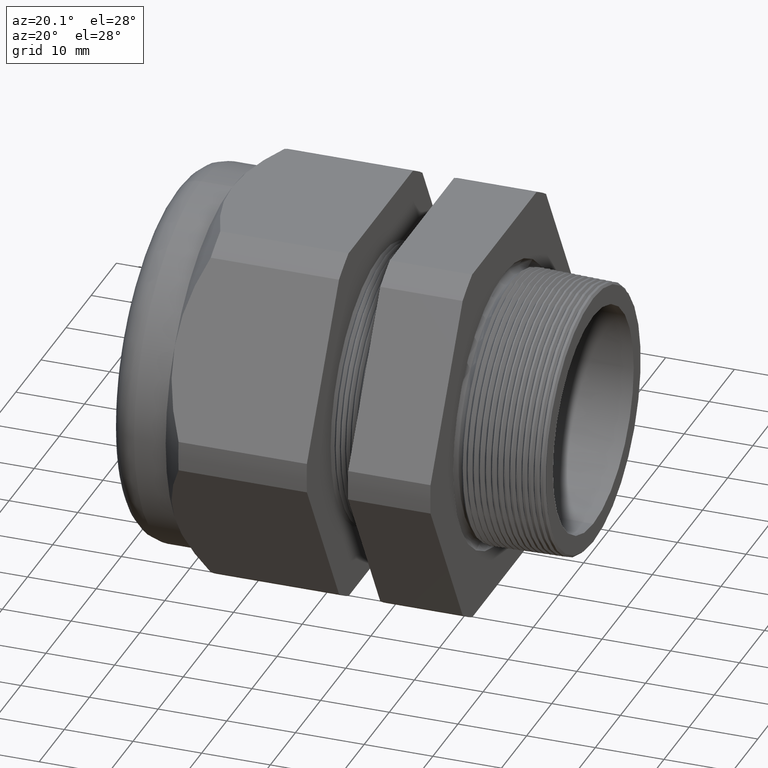
[diagram: clean part render]
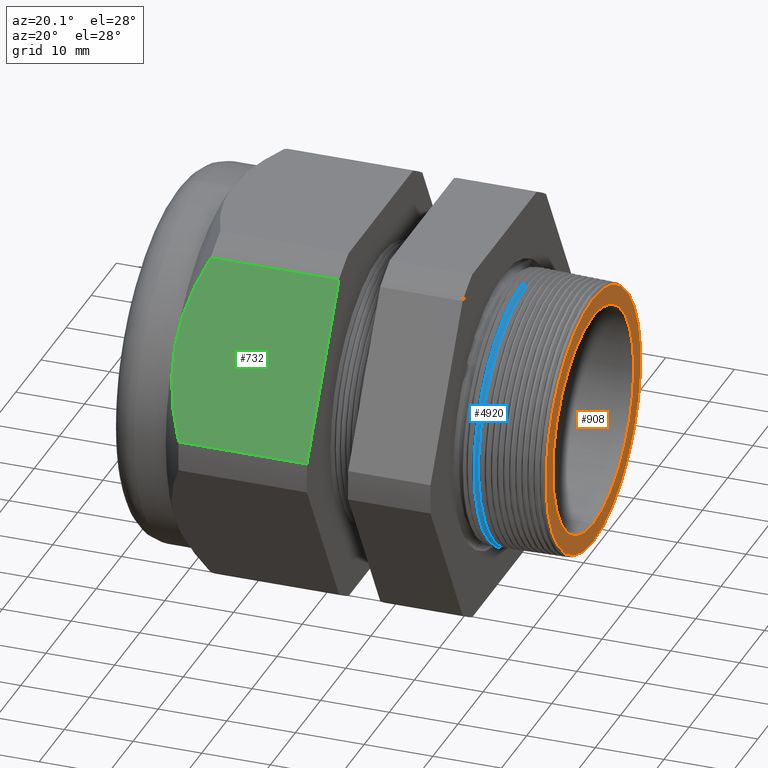
[diagram: same view with three faces highlighted in distinct colors, each labeled with its STEP entity id]
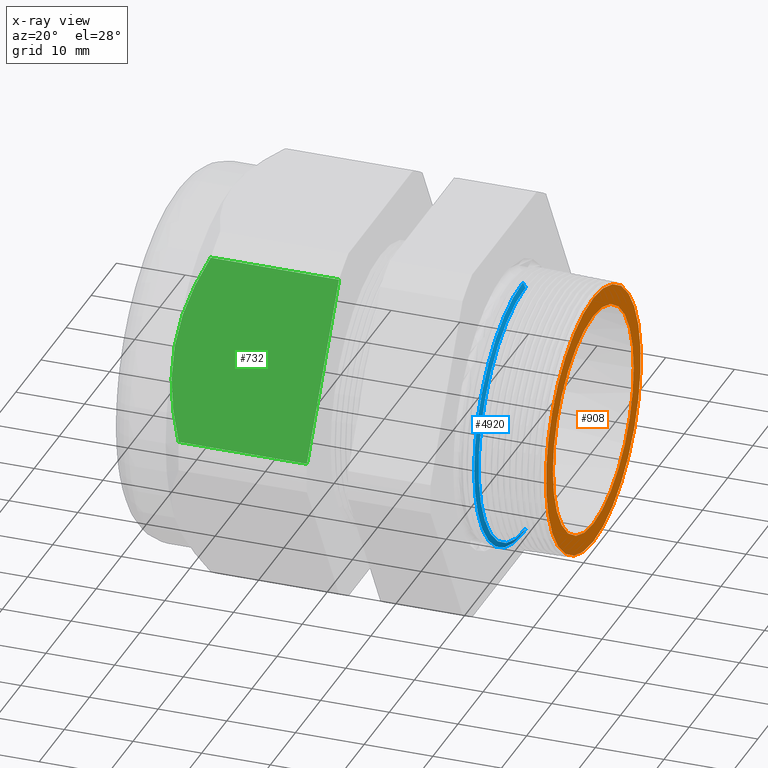
[diagram: x-ray of the same camera — body ghosted, the three highlighted faces saturated]
A machine part, auxiliary view with three faces highlighted in distinct colors.
The next image is the same camera in x-ray (body ghosted, the three faces saturated) — at least one of them is partly hidden behind the body in this view.
Their STEP definitions:

[orange] entity #908 — the highlighted planar face has unit normal (1, 0, 0).
#842 = EDGE_LOOP ( 'NONE', ( #843, #890 ) ) ;
#843 = ORIENTED_EDGE ( 'NONE', *, *, #907, .F. ) ;
#890 = ORIENTED_EDGE ( 'NONE', *, *, #5085, .F. ) ;
#907 = EDGE_CURVE ( 'NONE', #5086, #4892, #2609, .T. ) ;
#908 = ADVANCED_FACE ( 'NONE', ( #2605, #2604 ), #2603, .T. ) ;
#909 = EDGE_LOOP ( 'NONE', ( #910, #912 ) ) ;
#910 = ORIENTED_EDGE ( 'NONE', *, *, #911, .F. ) ;
#911 = EDGE_CURVE ( 'NONE', #5076, #5074, #2598, .T. ) ;
#912 = ORIENTED_EDGE ( 'NONE', *, *, #5081, .F. ) ;
#2594 = DIRECTION ( 'NONE',  ( 0.0000000000000000000, 0.0000000000000000000, -1.000000000000000000 ) ) ;
#2595 = DIRECTION ( 'NONE',  ( -1.000000000000000000, 0.0000000000000000000, 0.0000000000000000000 ) ) ;
#2596 = CARTESIAN_POINT ( 'NONE',  ( 0.2000000000000000400, 0.0000000000000000000, 0.0000000000000000000 ) ) ;
#2597 = AXIS2_PLACEMENT_3D ( 'NONE', #2596, #2595, #2594 ) ;
#2598 = CIRCLE ( 'NONE', #2597, 0.7416599535508322500 ) ;
#2599 = DIRECTION ( 'NONE',  ( 0.0000000000000000000, 0.0000000000000000000, -1.000000000000000000 ) ) ;
#2600 = DIRECTION ( 'NONE',  ( 1.000000000000000000, 0.0000000000000000000, 0.0000000000000000000 ) ) ;
#2601 = CARTESIAN_POINT ( 'NONE',  ( 0.2000000000000000400, 0.6330845254709034400, 0.0000000000000000000 ) ) ;
#2602 = AXIS2_PLACEMENT_3D ( 'NONE', #2601, #2600, #2599 ) ;
#2603 = PLANE ( 'NONE',  #2602 ) ;
#2604 = FACE_BOUND ( 'NONE', #842, .T. ) ;
#2605 = FACE_OUTER_BOUND ( 'NONE', #909, .T. ) ;
#2606 = DIRECTION ( 'NONE',  ( 0.0000000000000000000, 0.0000000000000000000, -1.000000000000000000 ) ) ;
#2607 = DIRECTION ( 'NONE',  ( 1.000000000000000000, 0.0000000000000000000, 0.0000000000000000000 ) ) ;
#2608 = AXIS2_PLACEMENT_3D ( 'NONE', #2614, #2607, #2606 ) ;
#2609 = CIRCLE ( 'NONE', #2608, 0.6330845254709034400 ) ;
#2614 = CARTESIAN_POINT ( 'NONE',  ( 0.2000000000000000400, 0.0000000000000000000, 0.0000000000000000000 ) ) ;
#3285 = CARTESIAN_POINT ( 'NONE',  ( 0.2000000000000000400, 7.753049377076629200E-017, 0.6330845254709034400 ) ) ;
#3542 = CIRCLE ( 'NONE', #3606, 0.7416599535508322500 ) ;
#3548 = CARTESIAN_POINT ( 'NONE',  ( 0.2000000000000000400, 0.0000000000000000000, -0.7416599535508322500 ) ) ;
#3550 = CARTESIAN_POINT ( 'NONE',  ( 0.2000000000000000400, 9.082714881718013100E-017, 0.7416599535508322500 ) ) ;
#3588 = CARTESIAN_POINT ( 'NONE',  ( 0.2000000000000000400, 0.0000000000000000000, -0.6330845254709034400 ) ) ;
#3589 = DIRECTION ( 'NONE',  ( 0.0000000000000000000, 0.0000000000000000000, -1.000000000000000000 ) ) ;
#3590 = DIRECTION ( 'NONE',  ( 1.000000000000000000, 0.0000000000000000000, 0.0000000000000000000 ) ) ;
#3591 = CARTESIAN_POINT ( 'NONE',  ( 0.2000000000000000400, 0.0000000000000000000, 0.0000000000000000000 ) ) ;
#3592 = AXIS2_PLACEMENT_3D ( 'NONE', #3591, #3590, #3589 ) ;
#3593 = CIRCLE ( 'NONE', #3592, 0.6330845254709034400 ) ;
#3603 = DIRECTION ( 'NONE',  ( 0.0000000000000000000, 0.0000000000000000000, -1.000000000000000000 ) ) ;
#3604 = DIRECTION ( 'NONE',  ( -1.000000000000000000, 0.0000000000000000000, 0.0000000000000000000 ) ) ;
#3605 = CARTESIAN_POINT ( 'NONE',  ( 0.2000000000000000400, 0.0000000000000000000, 0.0000000000000000000 ) ) ;
#3606 = AXIS2_PLACEMENT_3D ( 'NONE', #3605, #3604, #3603 ) ;
#4892 = VERTEX_POINT ( 'NONE', #3285 ) ;
#5074 = VERTEX_POINT ( 'NONE', #3550 ) ;
#5076 = VERTEX_POINT ( 'NONE', #3548 ) ;
#5081 = EDGE_CURVE ( 'NONE', #5074, #5076, #3542, .T. ) ;
#5085 = EDGE_CURVE ( 'NONE', #4892, #5086, #3593, .T. ) ;
#5086 = VERTEX_POINT ( 'NONE', #3588 ) ;

[blue] entity #4920 — the highlighted conical surface has half-angle 61.5 deg.
#307 = VERTEX_POINT ( 'NONE', #1474 ) ;
#312 = VERTEX_POINT ( 'NONE', #1463 ) ;
#340 = EDGE_CURVE ( 'NONE', #312, #348, #1531, .T. ) ;
#348 = VERTEX_POINT ( 'NONE', #1574 ) ;
#517 = EDGE_CURVE ( 'NONE', #5252, #348, #1793, .T. ) ;
#1463 = CARTESIAN_POINT ( 'NONE',  ( -0.1884707356790752100, 9.182685790054578000E-017, -0.7359962276773550600 ) ) ;
#1474 = CARTESIAN_POINT ( 'NONE',  ( -0.1884707356790752100, 0.0000000000000000000, 0.7359962276773550600 ) ) ;
#1528 = DIRECTION ( 'NONE',  ( -0.4771587602596179000, 1.076240564057388100E-016, -0.8788171126619600500 ) ) ;
#1529 = VECTOR ( 'NONE', #1528, 39.37007874015748900 ) ;
#1530 = CARTESIAN_POINT ( 'NONE',  ( -0.2049999999999999600, 9.386174911718792200E-017, -0.7664393454711850900 ) ) ;
#1531 = LINE ( 'NONE', #1530, #1529 ) ;
#1574 = CARTESIAN_POINT ( 'NONE',  ( -0.2034856000580644300, 9.352496886341754700E-017, -0.7636501677483175100 ) ) ;
#1785 = DIRECTION ( 'NONE',  ( 0.0000000000000000000, 0.0000000000000000000, 1.000000000000000000 ) ) ;
#1786 = DIRECTION ( 'NONE',  ( 1.000000000000000000, 0.0000000000000000000, 0.0000000000000000000 ) ) ;
#1787 = CARTESIAN_POINT ( 'NONE',  ( -0.2034856000580644300, 0.0000000000000000000, 0.0000000000000000000 ) ) ;
#1788 = AXIS2_PLACEMENT_3D ( 'NONE', #1787, #1786, #1785 ) ;
#1793 = CIRCLE ( 'NONE', #1788, 0.7636501677483175100 ) ;
#3303 = DIRECTION ( 'NONE',  ( 0.0000000000000000000, 0.0000000000000000000, 1.000000000000000000 ) ) ;
#3304 = DIRECTION ( 'NONE',  ( -1.000000000000000000, 0.0000000000000000000, 0.0000000000000000000 ) ) ;
#3305 = AXIS2_PLACEMENT_3D ( 'NONE', #3307, #3304, #3303 ) ;
#3306 = CONICAL_SURFACE ( 'NONE', #3305, 0.7664393454711850900, 1.073377489976501800 ) ;
#3307 = CARTESIAN_POINT ( 'NONE',  ( -0.2049999999999999600, 0.0000000000000000000, 0.0000000000000000000 ) ) ;
#3308 = FACE_OUTER_BOUND ( 'NONE', #4915, .T. ) ;
#3310 = DIRECTION ( 'NONE',  ( 0.0000000000000000000, 0.0000000000000000000, -1.000000000000000000 ) ) ;
#3311 = DIRECTION ( 'NONE',  ( 1.000000000000000000, 0.0000000000000000000, 0.0000000000000000000 ) ) ;
#3312 = CARTESIAN_POINT ( 'NONE',  ( -0.1884707356790752100, 0.0000000000000000000, 0.0000000000000000000 ) ) ;
#3313 = AXIS2_PLACEMENT_3D ( 'NONE', #3312, #3311, #3310 ) ;
#3318 = CIRCLE ( 'NONE', #3313, 0.7359962276773550600 ) ;
#3875 = CARTESIAN_POINT ( 'NONE',  ( -0.2034856000580644300, 0.0000000000000000000, 0.7636501677483175100 ) ) ;
#3876 = DIRECTION ( 'NONE',  ( -0.4771587602596179000, 0.0000000000000000000, 0.8788171126619600500 ) ) ;
#3877 = VECTOR ( 'NONE', #3876, 39.37007874015748900 ) ;
#3878 = CARTESIAN_POINT ( 'NONE',  ( -0.2049999999999999600, 0.0000000000000000000, 0.7664393454711850900 ) ) ;
#3879 = LINE ( 'NONE', #3878, #3877 ) ;
#4912 = ORIENTED_EDGE ( 'NONE', *, *, #4917, .F. ) ;
#4913 = ORIENTED_EDGE ( 'NONE', *, *, #5248, .T. ) ;
#4914 = ORIENTED_EDGE ( 'NONE', *, *, #340, .F. ) ;
#4915 = EDGE_LOOP ( 'NONE', ( #4914, #4912, #4913, #4916 ) ) ;
#4916 = ORIENTED_EDGE ( 'NONE', *, *, #517, .T. ) ;
#4917 = EDGE_CURVE ( 'NONE', #307, #312, #3318, .T. ) ;
#4920 = ADVANCED_FACE ( 'NONE', ( #3308 ), #3306, .T. ) ;
#5248 = EDGE_CURVE ( 'NONE', #307, #5252, #3879, .T. ) ;
#5252 = VERTEX_POINT ( 'NONE', #3875 ) ;

[green] entity #732 — the highlighted planar face has unit normal (0, -0.866, 0.5).
#717 = ORIENTED_EDGE ( 'NONE', *, *, #718, .F. ) ;
#718 = EDGE_CURVE ( 'NONE', #736, #753, #2239, .T. ) ;
#732 = ADVANCED_FACE ( 'NONE', ( #2264 ), #2263, .T. ) ;
#733 = EDGE_LOOP ( 'NONE', ( #734, #738, #741, #743, #717 ) ) ;
#734 = ORIENTED_EDGE ( 'NONE', *, *, #735, .T. ) ;
#735 = EDGE_CURVE ( 'NONE', #736, #737, #2258, .T. ) ;
#736 = VERTEX_POINT ( 'NONE', #2254 ) ;
#737 = VERTEX_POINT ( 'NONE', #2253 ) ;
#738 = ORIENTED_EDGE ( 'NONE', *, *, #739, .T. ) ;
#739 = EDGE_CURVE ( 'NONE', #737, #740, #2252, .T. ) ;
#740 = VERTEX_POINT ( 'NONE', #2251 ) ;
#741 = ORIENTED_EDGE ( 'NONE', *, *, #742, .T. ) ;
#742 = EDGE_CURVE ( 'NONE', #740, #754, #2299, .T. ) ;
#743 = ORIENTED_EDGE ( 'NONE', *, *, #752, .F. ) ;
#752 = EDGE_CURVE ( 'NONE', #753, #754, #2275, .T. ) ;
#753 = VERTEX_POINT ( 'NONE', #2326 ) ;
#754 = VERTEX_POINT ( 'NONE', #2325 ) ;
#2236 = DIRECTION ( 'NONE',  ( 0.0000000000000000000, -0.4999999999999996100, -0.8660254037844388200 ) ) ;
#2237 = VECTOR ( 'NONE', #2236, 39.37007874015748900 ) ;
#2238 = CARTESIAN_POINT ( 'NONE',  ( -1.018802799999999800, -0.7087465469547383800, 0.8624149709853914400 ) ) ;
#2239 = LINE ( 'NONE', #2238, #2237 ) ;
#2249 = CARTESIAN_POINT ( 'NONE',  ( -1.789102837835438100, -0.6933177427239284300, 0.8891384438131889600 ) ) ;
#2250 = CARTESIAN_POINT ( 'NONE',  ( -1.754342000000000300, -0.6532729870224187600, 0.9584979952648864400 ) ) ;
#2251 = CARTESIAN_POINT ( 'NONE',  ( -1.869292000000000000, -0.9049965469547386300, 0.5224999999999996300 ) ) ;
#2252 = B_SPLINE_CURVE_WITH_KNOTS ( 'NONE', 3,
 ( #2250, #2249, #2307, #2306, #2305, #2304, #2303, #2302, #2301, #2300 ),
 .UNSPECIFIED., .F., .F.,
 ( 4, 2, 2, 2, 4 ),
 ( 2.483246824854965000E-007, 0.006562468983848370100, 0.009843579313431312000, 0.01148413447822278100, 0.01312468964301425000 ),
 .UNSPECIFIED. ) ;
#2253 = CARTESIAN_POINT ( 'NONE',  ( -1.754342000000000300, -0.6532729870224187600, 0.9584979952648864400 ) ) ;
#2254 = CARTESIAN_POINT ( 'NONE',  ( -1.018802799999999800, -0.6532729870224188700, 0.9584979952648866600 ) ) ;
#2255 = DIRECTION ( 'NONE',  ( -1.000000000000000000, 0.0000000000000000000, 0.0000000000000000000 ) ) ;
#2256 = VECTOR ( 'NONE', #2255, 39.37007874015748100 ) ;
#2257 = CARTESIAN_POINT ( 'NONE',  ( 0.2000000000000000400, -0.6532729870224188700, 0.9584979952648866600 ) ) ;
#2258 = LINE ( 'NONE', #2257, #2256 ) ;
#2259 = DIRECTION ( 'NONE',  ( 0.0000000000000000000, -0.4999999999999996100, -0.8660254037844388200 ) ) ;
#2260 = DIRECTION ( 'NONE',  ( 0.0000000000000000000, -0.8660254037844388200, 0.4999999999999996100 ) ) ;
#2261 = CARTESIAN_POINT ( 'NONE',  ( 0.2000000000000000400, -1.156720106887057800, 0.08650200473511263100 ) ) ;
#2262 = AXIS2_PLACEMENT_3D ( 'NONE', #2261, #2260, #2259 ) ;
#2263 = PLANE ( 'NONE',  #2262 ) ;
#2264 = FACE_OUTER_BOUND ( 'NONE', #733, .T. ) ;
#2275 = LINE ( 'NONE', #2329, #2328 ) ;
#2291 = CARTESIAN_POINT ( 'NONE',  ( -1.754342000000000300, -1.156720106887057800, 0.08650200473511252000 ) ) ;
#2292 = CARTESIAN_POINT ( 'NONE',  ( -1.771743928187930100, -1.136672950189631100, 0.1212246986823501300 ) ) ;
#2293 = CARTESIAN_POINT ( 'NONE',  ( -1.787722809093209100, -1.116325425824559800, 0.1564676446908996300 ) ) ;
#2294 = CARTESIAN_POINT ( 'NONE',  ( -1.816049984818948400, -1.075009018692886200, 0.2280297610291591200 ) ) ;
#2295 = CARTESIAN_POINT ( 'NONE',  ( -1.828286401335962800, -1.054198518062447800, 0.2640746054520222700 ) ) ;
#2296 = CARTESIAN_POINT ( 'NONE',  ( -1.858295772310753800, -0.9912375501002805800, 0.3731262008562124500 ) ) ;
#2297 = CARTESIAN_POINT ( 'NONE',  ( -1.869292000000000800, -0.9485515436756352100, 0.4470605327559100700 ) ) ;
#2298 = CARTESIAN_POINT ( 'NONE',  ( -1.869292000000000000, -0.9049965469547386300, 0.5224999999999996300 ) ) ;
#2299 = B_SPLINE_CURVE_WITH_KNOTS ( 'NONE', 3,
 ( #2298, #2297, #2296, #2295, #2294, #2293, #2292, #2291 ),
 .UNSPECIFIED., .F., .F.,
 ( 4, 2, 2, 4 ),
 ( 0.01312468964301425000, 0.01968241065928899900, 0.02296127116742637000, 0.02624013167556374400 ),
 .UNSPECIFIED. ) ;
#2300 = CARTESIAN_POINT ( 'NONE',  ( -1.869292000000000000, -0.9049965469547386300, 0.5224999999999996300 ) ) ;
#2301 = CARTESIAN_POINT ( 'NONE',  ( -1.869292000000000400, -0.8941003263552938000, 0.5413728076887161000 ) ) ;
#2302 = CARTESIAN_POINT ( 'NONE',  ( -1.868602443834755700, -0.8831044440390649600, 0.5604182345344735900 ) ) ;
#2303 = CARTESIAN_POINT ( 'NONE',  ( -1.865863667396531200, -0.8612576128887807800, 0.5982580560711432400 ) ) ;
#2304 = CARTESIAN_POINT ( 'NONE',  ( -1.863823402605176500, -0.8504177933294219100, 0.6170331742928315500 ) ) ;
#2305 = CARTESIAN_POINT ( 'NONE',  ( -1.855811452808128000, -0.8181339861334947500, 0.6729503686179362200 ) ) ;
#2306 = CARTESIAN_POINT ( 'NONE',  ( -1.847948022855568300, -0.7969257234379633100, 0.7096841571468635000 ) ) ;
#2307 = CARTESIAN_POINT ( 'NONE',  ( -1.817835050397151200, -0.7341137082222669600, 0.8184777588262391900 ) ) ;
#2325 = CARTESIAN_POINT ( 'NONE',  ( -1.754342000000000300, -1.156720106887057800, 0.08650200473511252000 ) ) ;
#2326 = CARTESIAN_POINT ( 'NONE',  ( -1.018802799999999800, -1.156720106887058100, 0.08650200473511256100 ) ) ;
#2327 = DIRECTION ( 'NONE',  ( -1.000000000000000000, 0.0000000000000000000, 0.0000000000000000000 ) ) ;
#2328 = VECTOR ( 'NONE', #2327, 39.37007874015748100 ) ;
#2329 = CARTESIAN_POINT ( 'NONE',  ( 0.2000000000000000400, -1.156720106887058100, 0.08650200473511256100 ) ) ;